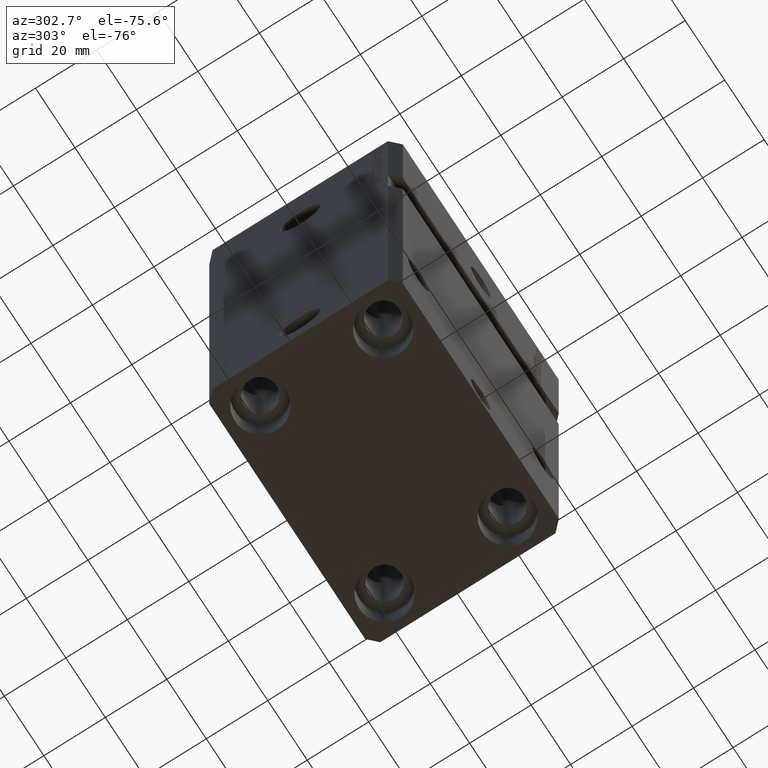
[diagram: clean part render]
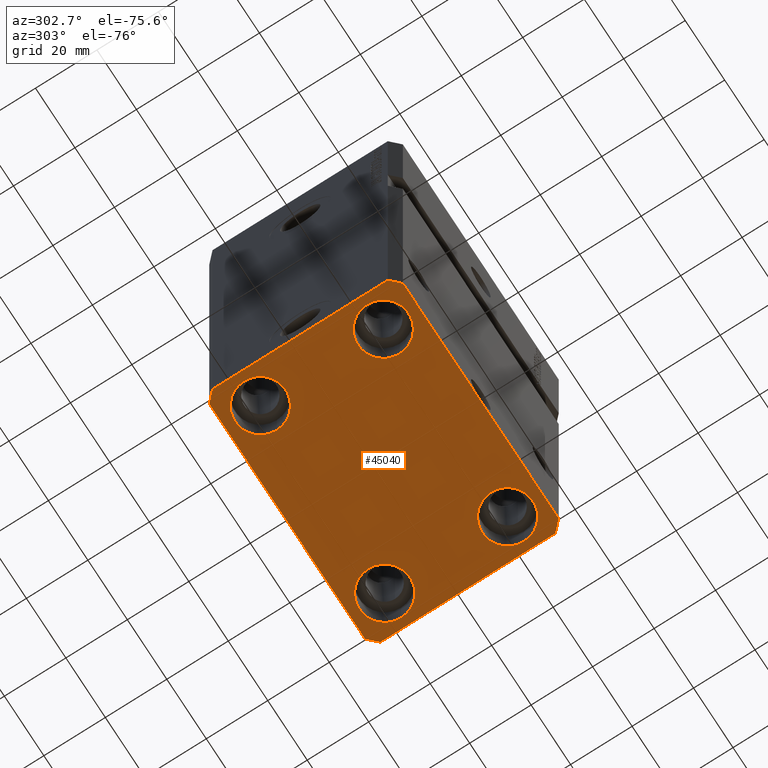
[diagram: same view with one face highlighted and labeled with its STEP entity id]
A machine part, auxiliary view. The second image highlights one B-rep face of the part: STEP entity #45040.
In plain terms, the highlighted planar face has unit normal (0, 0, 1).
Its self-contained STEP definition (entity closure, byte-faithful):
#420 = CARTESIAN_POINT ( 'NONE',  ( -39.50000000000000711, -31.50000000000000000, -153.0000000000000000 ) ) ;
#650 = ORIENTED_EDGE ( 'NONE', *, *, #27492, .F. ) ;
#846 = LINE ( 'NONE', #17359, #17663 ) ;
#1108 = ORIENTED_EDGE ( 'NONE', *, *, #28616, .T. ) ;
#1361 = DIRECTION ( 'NONE',  ( 1.000000000000000000, 0.000000000000000000, 0.000000000000000000 ) ) ;
#1501 = VERTEX_POINT ( 'NONE', #8168 ) ;
#1858 = CARTESIAN_POINT ( 'NONE',  ( 0.000000000000000000, 0.000000000000000000, -153.0000000000000000 ) ) ;
#2406 = CARTESIAN_POINT ( 'NONE',  ( 31.50000000000000000, 20.00000000000001066, -153.0000000000000000 ) ) ;
#2655 = VECTOR ( 'NONE', #42516, 1000.000000000000114 ) ;
#2743 = VECTOR ( 'NONE', #38531, 1000.000000000000000 ) ;
#2851 = DIRECTION ( 'NONE',  ( 1.000000000000000000, 0.000000000000000000, 0.000000000000000000 ) ) ;
#3281 = ORIENTED_EDGE ( 'NONE', *, *, #28561, .F. ) ;
#3333 = AXIS2_PLACEMENT_3D ( 'NONE', #30397, #39881, #1361 ) ;
#3633 = CIRCLE ( 'NONE', #29250, 8.250000000000000000 ) ;
#3840 = DIRECTION ( 'NONE',  ( 0.7071067811865471286, -0.7071067811865479058, 0.000000000000000000 ) ) ;
#4623 = CIRCLE ( 'NONE', #30239, 8.249999999999992895 ) ;
#4661 = LINE ( 'NONE', #18404, #2655 ) ;
#4799 = VECTOR ( 'NONE', #24550, 1000.000000000000000 ) ;
#5001 = LINE ( 'NONE', #43089, #31120 ) ;
#5280 = EDGE_CURVE ( 'NONE', #30021, #29827, #3633, .T. ) ;
#5420 = AXIS2_PLACEMENT_3D ( 'NONE', #25105, #32009, #28778 ) ;
#5445 = ORIENTED_EDGE ( 'NONE', *, *, #9817, .F. ) ;
#5513 = CIRCLE ( 'NONE', #24521, 8.249999999999992895 ) ;
#5638 = CARTESIAN_POINT ( 'NONE',  ( -23.25000000000000000, 20.00000000000000000, -153.0000000000000000 ) ) ;
#6549 = VERTEX_POINT ( 'NONE', #19634 ) ;
#7035 = EDGE_LOOP ( 'NONE', ( #12434, #22240 ) ) ;
#7121 = CARTESIAN_POINT ( 'NONE',  ( -31.50000000000000000, -20.00000000000000000, -153.0000000000000000 ) ) ;
#7322 = ORIENTED_EDGE ( 'NONE', *, *, #38203, .F. ) ;
#7632 = VERTEX_POINT ( 'NONE', #31449 ) ;
#7844 = CIRCLE ( 'NONE', #21736, 8.250000000000000000 ) ;
#8168 = CARTESIAN_POINT ( 'NONE',  ( 39.50000000000000711, -31.50000000000000000, -153.0000000000000000 ) ) ;
#8357 = CARTESIAN_POINT ( 'NONE',  ( 31.50000000000000000, -20.00000000000000000, -153.0000000000000000 ) ) ;
#8633 = ORIENTED_EDGE ( 'NONE', *, *, #13448, .T. ) ;
#8654 = CARTESIAN_POINT ( 'NONE',  ( 23.25000000000000355, 20.00000000000001066, -153.0000000000000000 ) ) ;
#9631 = CARTESIAN_POINT ( 'NONE',  ( -39.50000000000000711, -31.50000000000000000, -153.0000000000000000 ) ) ;
#9817 = EDGE_CURVE ( 'NONE', #13831, #24465, #846, .T. ) ;
#11432 = DIRECTION ( 'NONE',  ( 8.886653596232072440E-15, 1.000000000000000000, 0.000000000000000000 ) ) ;
#11951 = FACE_BOUND ( 'NONE', #43050, .T. ) ;
#12434 = ORIENTED_EDGE ( 'NONE', *, *, #5280, .T. ) ;
#12541 = AXIS2_PLACEMENT_3D ( 'NONE', #26536, #15546, #39869 ) ;
#13448 = EDGE_CURVE ( 'NONE', #31725, #18274, #16201, .T. ) ;
#13528 = DIRECTION ( 'NONE',  ( 1.000000000000000000, 0.000000000000000000, 0.000000000000000000 ) ) ;
#13556 = VERTEX_POINT ( 'NONE', #25358 ) ;
#13831 = VERTEX_POINT ( 'NONE', #34969 ) ;
#14399 = DIRECTION ( 'NONE',  ( -1.000000000000000000, 0.000000000000000000, 0.000000000000000000 ) ) ;
#14964 = CIRCLE ( 'NONE', #5420, 8.250000000000000000 ) ;
#15070 = ORIENTED_EDGE ( 'NONE', *, *, #33286, .F. ) ;
#15546 = DIRECTION ( 'NONE',  ( -0.000000000000000000, -0.000000000000000000, 1.000000000000000000 ) ) ;
#16061 = FACE_BOUND ( 'NONE', #37626, .T. ) ;
#16201 = CIRCLE ( 'NONE', #12541, 8.249999999999992895 ) ;
#16907 = CARTESIAN_POINT ( 'NONE',  ( 23.25000000000000355, -20.00000000000000000, -153.0000000000000000 ) ) ;
#17359 = CARTESIAN_POINT ( 'NONE',  ( -42.50000000000000000, -28.50000000000000000, -153.0000000000000000 ) ) ;
#17663 = VECTOR ( 'NONE', #3840, 1000.000000000000000 ) ;
#17913 = ORIENTED_EDGE ( 'NONE', *, *, #23178, .T. ) ;
#18274 = VERTEX_POINT ( 'NONE', #16907 ) ;
#18296 = VERTEX_POINT ( 'NONE', #37342 ) ;
#18404 = CARTESIAN_POINT ( 'NONE',  ( 42.50000000000051870, 28.49999999999995381, -153.0000000000000000 ) ) ;
#19321 = CARTESIAN_POINT ( 'NONE',  ( -39.50000000000000711, 31.50000000000000000, -153.0000000000000000 ) ) ;
#19634 = CARTESIAN_POINT ( 'NONE',  ( 42.50000000000000711, -28.50000000000000355, -153.0000000000000000 ) ) ;
#19759 = ORIENTED_EDGE ( 'NONE', *, *, #28903, .F. ) ;
#21736 = AXIS2_PLACEMENT_3D ( 'NONE', #21984, #25212, #39669 ) ;
#21984 = CARTESIAN_POINT ( 'NONE',  ( -31.50000000000000000, 20.00000000000000000, -153.0000000000000000 ) ) ;
#22240 = ORIENTED_EDGE ( 'NONE', *, *, #28415, .T. ) ;
#22473 = DIRECTION ( 'NONE',  ( 1.000000000000000000, 0.000000000000000000, -0.000000000000000000 ) ) ;
#23178 = EDGE_CURVE ( 'NONE', #18274, #31725, #4623, .T. ) ;
#23450 = DIRECTION ( 'NONE',  ( -0.7071067811865471286, -0.7071067811865479058, 0.000000000000000000 ) ) ;
#23801 = VECTOR ( 'NONE', #23450, 1000.000000000000000 ) ;
#24465 = VERTEX_POINT ( 'NONE', #420 ) ;
#24486 = EDGE_CURVE ( 'NONE', #33394, #40404, #28599, .T. ) ;
#24521 = AXIS2_PLACEMENT_3D ( 'NONE', #2406, #34275, #2851 ) ;
#24550 = DIRECTION ( 'NONE',  ( 0.000000000000000000, -1.000000000000000000, 0.000000000000000000 ) ) ;
#24714 = EDGE_CURVE ( 'NONE', #28683, #13556, #14964, .T. ) ;
#25105 = CARTESIAN_POINT ( 'NONE',  ( -31.50000000000000000, 20.00000000000000000, -153.0000000000000000 ) ) ;
#25212 = DIRECTION ( 'NONE',  ( -0.000000000000000000, -0.000000000000000000, 1.000000000000000000 ) ) ;
#25358 = CARTESIAN_POINT ( 'NONE',  ( -39.75000000000000000, 20.00000000000000000, -153.0000000000000000 ) ) ;
#25425 = VERTEX_POINT ( 'NONE', #28161 ) ;
#25933 = PLANE ( 'NONE',  #39788 ) ;
#26013 = CIRCLE ( 'NONE', #3333, 8.249999999999992895 ) ;
#26374 = FACE_BOUND ( 'NONE', #34484, .T. ) ;
#26536 = CARTESIAN_POINT ( 'NONE',  ( 31.50000000000000000, -20.00000000000000000, -153.0000000000000000 ) ) ;
#27048 = CARTESIAN_POINT ( 'NONE',  ( 39.74999999999999289, -20.00000000000000000, -153.0000000000000000 ) ) ;
#27492 = EDGE_CURVE ( 'NONE', #6549, #18296, #5001, .T. ) ;
#28161 = CARTESIAN_POINT ( 'NONE',  ( 39.74999999999999289, 20.00000000000001066, -153.0000000000000000 ) ) ;
#28203 = CIRCLE ( 'NONE', #45080, 8.250000000000000000 ) ;
#28336 = ORIENTED_EDGE ( 'NONE', *, *, #24714, .T. ) ;
#28415 = EDGE_CURVE ( 'NONE', #29827, #30021, #28203, .T. ) ;
#28561 = EDGE_CURVE ( 'NONE', #1501, #6549, #41395, .T. ) ;
#28599 = LINE ( 'NONE', #35044, #38401 ) ;
#28616 = EDGE_CURVE ( 'NONE', #25425, #31161, #26013, .T. ) ;
#28683 = VERTEX_POINT ( 'NONE', #5638 ) ;
#28778 = DIRECTION ( 'NONE',  ( 1.000000000000000000, 0.000000000000000000, 0.000000000000000000 ) ) ;
#28903 = EDGE_CURVE ( 'NONE', #40404, #7632, #30569, .T. ) ;
#29000 = DIRECTION ( 'NONE',  ( -0.000000000000000000, -0.000000000000000000, 1.000000000000000000 ) ) ;
#29250 = AXIS2_PLACEMENT_3D ( 'NONE', #7121, #38781, #35117 ) ;
#29516 = EDGE_CURVE ( 'NONE', #18296, #33394, #4661, .T. ) ;
#29827 = VERTEX_POINT ( 'NONE', #44545 ) ;
#30021 = VERTEX_POINT ( 'NONE', #37604 ) ;
#30239 = AXIS2_PLACEMENT_3D ( 'NONE', #8357, #29000, #42328 ) ;
#30397 = CARTESIAN_POINT ( 'NONE',  ( 31.50000000000000000, 20.00000000000001066, -153.0000000000000000 ) ) ;
#30569 = LINE ( 'NONE', #37241, #23801 ) ;
#30950 = DIRECTION ( 'NONE',  ( -0.000000000000000000, -0.000000000000000000, 1.000000000000000000 ) ) ;
#31120 = VECTOR ( 'NONE', #11432, 1000.000000000000000 ) ;
#31161 = VERTEX_POINT ( 'NONE', #8654 ) ;
#31449 = CARTESIAN_POINT ( 'NONE',  ( -42.50000000000000000, 28.50000000000000000, -153.0000000000000000 ) ) ;
#31725 = VERTEX_POINT ( 'NONE', #27048 ) ;
#32009 = DIRECTION ( 'NONE',  ( -0.000000000000000000, -0.000000000000000000, 1.000000000000000000 ) ) ;
#32051 = EDGE_CURVE ( 'NONE', #31161, #25425, #5513, .T. ) ;
#32774 = CARTESIAN_POINT ( 'NONE',  ( 39.50000000000000711, -31.50000000000000000, -153.0000000000000000 ) ) ;
#33286 = EDGE_CURVE ( 'NONE', #7632, #13831, #42919, .T. ) ;
#33374 = ORIENTED_EDGE ( 'NONE', *, *, #29516, .F. ) ;
#33394 = VERTEX_POINT ( 'NONE', #33945 ) ;
#33502 = FACE_BOUND ( 'NONE', #7035, .T. ) ;
#33945 = CARTESIAN_POINT ( 'NONE',  ( 39.50000000000056843, 31.50000000000000000, -153.0000000000000000 ) ) ;
#34275 = DIRECTION ( 'NONE',  ( -0.000000000000000000, -0.000000000000000000, 1.000000000000000000 ) ) ;
#34484 = EDGE_LOOP ( 'NONE', ( #44871, #1108 ) ) ;
#34969 = CARTESIAN_POINT ( 'NONE',  ( -42.50000000000000000, -28.50000000000000000, -153.0000000000000000 ) ) ;
#35044 = CARTESIAN_POINT ( 'NONE',  ( 39.50000000000056843, 31.50000000000000000, -153.0000000000000000 ) ) ;
#35091 = CARTESIAN_POINT ( 'NONE',  ( -31.50000000000000000, -20.00000000000000000, -153.0000000000000000 ) ) ;
#35117 = DIRECTION ( 'NONE',  ( 1.000000000000000000, 0.000000000000000000, 0.000000000000000000 ) ) ;
#36503 = EDGE_CURVE ( 'NONE', #13556, #28683, #7844, .T. ) ;
#37241 = CARTESIAN_POINT ( 'NONE',  ( -39.50000000000000711, 31.50000000000000000, -153.0000000000000000 ) ) ;
#37342 = CARTESIAN_POINT ( 'NONE',  ( 42.50000000000051870, 28.49999999999995381, -153.0000000000000000 ) ) ;
#37604 = CARTESIAN_POINT ( 'NONE',  ( -39.75000000000000000, -20.00000000000000000, -153.0000000000000000 ) ) ;
#37626 = EDGE_LOOP ( 'NONE', ( #42301, #28336 ) ) ;
#37742 = DIRECTION ( 'NONE',  ( 0.7071067811865483499, 0.7071067811865466846, 0.000000000000000000 ) ) ;
#38203 = EDGE_CURVE ( 'NONE', #24465, #1501, #41972, .T. ) ;
#38401 = VECTOR ( 'NONE', #14399, 1000.000000000000000 ) ;
#38531 = DIRECTION ( 'NONE',  ( 1.000000000000000000, 0.000000000000000000, 0.000000000000000000 ) ) ;
#38668 = EDGE_LOOP ( 'NONE', ( #42285, #33374, #650, #3281, #7322, #5445, #15070, #19759 ) ) ;
#38781 = DIRECTION ( 'NONE',  ( -0.000000000000000000, -0.000000000000000000, 1.000000000000000000 ) ) ;
#39669 = DIRECTION ( 'NONE',  ( 1.000000000000000000, 0.000000000000000000, 0.000000000000000000 ) ) ;
#39788 = AXIS2_PLACEMENT_3D ( 'NONE', #1858, #40380, #22473 ) ;
#39869 = DIRECTION ( 'NONE',  ( 1.000000000000000000, 0.000000000000000000, 0.000000000000000000 ) ) ;
#39881 = DIRECTION ( 'NONE',  ( -0.000000000000000000, -0.000000000000000000, 1.000000000000000000 ) ) ;
#39930 = FACE_OUTER_BOUND ( 'NONE', #38668, .T. ) ;
#40380 = DIRECTION ( 'NONE',  ( 0.000000000000000000, 0.000000000000000000, 1.000000000000000000 ) ) ;
#40404 = VERTEX_POINT ( 'NONE', #19321 ) ;
#41395 = LINE ( 'NONE', #32774, #44373 ) ;
#41972 = LINE ( 'NONE', #9631, #2743 ) ;
#42010 = CARTESIAN_POINT ( 'NONE',  ( -42.50000000000000000, 28.50000000000000000, -153.0000000000000000 ) ) ;
#42285 = ORIENTED_EDGE ( 'NONE', *, *, #24486, .F. ) ;
#42301 = ORIENTED_EDGE ( 'NONE', *, *, #36503, .T. ) ;
#42328 = DIRECTION ( 'NONE',  ( 1.000000000000000000, 0.000000000000000000, 0.000000000000000000 ) ) ;
#42516 = DIRECTION ( 'NONE',  ( -0.7071067811865356934, 0.7071067811865594521, 0.000000000000000000 ) ) ;
#42919 = LINE ( 'NONE', #42010, #4799 ) ;
#43050 = EDGE_LOOP ( 'NONE', ( #17913, #8633 ) ) ;
#43089 = CARTESIAN_POINT ( 'NONE',  ( 42.50000000000000711, -28.50000000000000355, -153.0000000000000000 ) ) ;
#44373 = VECTOR ( 'NONE', #37742, 1000.000000000000000 ) ;
#44545 = CARTESIAN_POINT ( 'NONE',  ( -23.25000000000000000, -20.00000000000000000, -153.0000000000000000 ) ) ;
#44871 = ORIENTED_EDGE ( 'NONE', *, *, #32051, .T. ) ;
#45040 = ADVANCED_FACE ( 'NONE', ( #33502, #11951, #26374, #16061, #39930 ), #25933, .F. ) ;
#45080 = AXIS2_PLACEMENT_3D ( 'NONE', #35091, #30950, #13528 ) ;